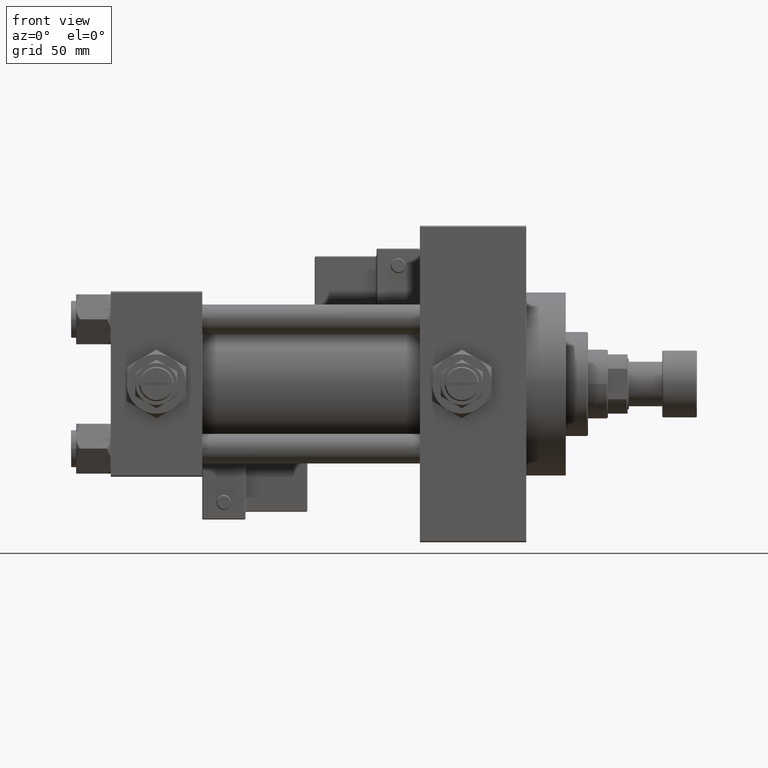
[diagram: clean part render]
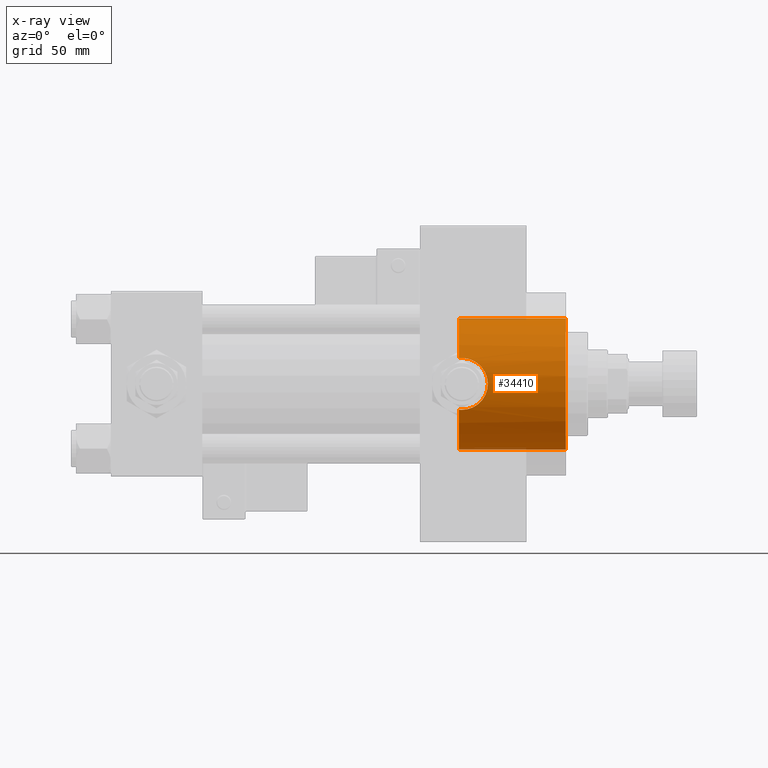
[diagram: x-ray — body ghosted, one internal face saturated and labeled with its STEP entity id]
A machine part, front view, then the same camera in x-ray: the body is ghosted and one INTERNAL B-rep face — a face not visible from any outside direction — is saturated and labeled: STEP entity #34410.
In plain terms, the highlighted cylindrical surface (partial cylindrical patch) has radius 26.5 mm, axis along (1, 0, 0).
Its self-contained STEP definition (entity closure, byte-faithful):
#454 = DIRECTION ( 'NONE',  ( 0.000000000000000000, 0.000000000000000000, -1.000000000000000000 ) ) ;
#645 = FACE_OUTER_BOUND ( 'NONE', #48288, .T. ) ;
#722 = EDGE_CURVE ( 'NONE', #43915, #22516, #12588, .T. ) ;
#1644 = CARTESIAN_POINT ( 'NONE',  ( 140.7400000000000091, -24.37226292324946186, 10.40398000767012654 ) ) ;
#2136 = CARTESIAN_POINT ( 'NONE',  ( 151.0679913760332624, -25.97354752128885025, 5.264851845784581208 ) ) ;
#2283 = CARTESIAN_POINT ( 'NONE',  ( 140.7400000000000091, 0.000000000000000000, -26.50000000000000355 ) ) ;
#2354 = AXIS2_PLACEMENT_3D ( 'NONE', #36370, #44497, #8528 ) ;
#2396 = CARTESIAN_POINT ( 'NONE',  ( 150.3132647636414845, -25.71940794313461254, -6.390292897823897533 ) ) ;
#2816 = EDGE_CURVE ( 'NONE', #8827, #43915, #11239, .T. ) ;
#2907 = CARTESIAN_POINT ( 'NONE',  ( 147.2635990777562256, -24.90054338428140568, -9.068796382691630242 ) ) ;
#3159 = CARTESIAN_POINT ( 'NONE',  ( 152.3421836049516855, -26.44572692659851754, -1.728475508984261610 ) ) ;
#3166 = EDGE_CURVE ( 'NONE', #22595, #22516, #24873, .T. ) ;
#3855 = CIRCLE ( 'NONE', #16415, 26.50000000000000355 ) ;
#5739 = B_SPLINE_CURVE_WITH_KNOTS ( 'NONE', 3,
 ( #48594, #33092, #8924, #20756 ),
 .UNSPECIFIED., .F., .F.,
 ( 4, 4 ),
 ( 0.000000000000000000, 0.001255586767787714641 ),
 .UNSPECIFIED. ) ;
#6324 = CARTESIAN_POINT ( 'NONE',  ( 151.8022638174866472, -26.23907308479209988, 3.723318718764343949 ) ) ;
#6841 = CARTESIAN_POINT ( 'NONE',  ( 147.2636119660473923, -24.89625137302611080, 9.087734872939162045 ) ) ;
#6876 = CARTESIAN_POINT ( 'NONE',  ( 140.7400000000000091, -24.37226292324946542, -10.40398000767012299 ) ) ;
#7094 = CARTESIAN_POINT ( 'NONE',  ( 152.2075249541715039, -26.39335609204158573, 2.399236127628234794 ) ) ;
#7697 = ORIENTED_EDGE ( 'NONE', *, *, #2816, .T. ) ;
#7863 = CARTESIAN_POINT ( 'NONE',  ( 140.7400000000000091, -24.37226292324946186, 10.40398000767012654 ) ) ;
#8528 = DIRECTION ( 'NONE',  ( 0.000000000000000000, 0.000000000000000000, -1.000000000000000000 ) ) ;
#8827 = VERTEX_POINT ( 'NONE', #42511 ) ;
#8924 = CARTESIAN_POINT ( 'NONE',  ( 141.5811236364006049, -24.33967132070604933, -10.47999999999998444 ) ) ;
#10280 = CARTESIAN_POINT ( 'NONE',  ( 151.0816778311289568, -25.97633853132261450, -5.273786452924785983 ) ) ;
#10532 = CARTESIAN_POINT ( 'NONE',  ( 142.0000000000000284, -24.33967132070604933, 10.47999999999998799 ) ) ;
#11047 = CARTESIAN_POINT ( 'NONE',  ( 151.5385175848663266, -26.14168889184969657, 4.354785931857517056 ) ) ;
#11239 = B_SPLINE_CURVE_WITH_KNOTS ( 'NONE', 3,
 ( #33142, #22878, #31018, #27084, #26824, #38879, #34944, #2907, #26565, #26310, #42818, #18933, #43071, #2396, #47020, #10280, #42302, #34176, #30251, #3159, #50967, #14993, #30511, #30762, #46508, #7094, #46250, #19189, #6324, #11047, #23127, #2136, #14232, #14485, #39131, #18680, #18163, #50715, #22363, #6841, #38366, #50205, #38626, #18426, #34433, #14735, #50460, #10532 ),
 .UNSPECIFIED., .F., .F.,
 ( 4, 2, 2, 2, 2, 2, 2, 2, 2, 2, 2, 2, 2, 2, 2, 2, 2, 2, 2, 2, 2, 2, 2, 4 ),
 ( 0.001255586767787714641, 0.003325356817179755085, 0.005395126866571796180, 0.006430011891267852289, 0.007464896915963908398, 0.009534666965355952095, 0.01056955199005197438, 0.01160443701474799492, 0.01367420706413999265, 0.01574397711353198864, 0.01677886213822798664, 0.01781374716292398463, 0.01988351721231598410, 0.02091840223701198556, 0.02195328726170798356, 0.02298817228640397808, 0.02402305731109997608, 0.02609282736049197207, 0.02712771238518797007, 0.02816259740988396806, 0.03023236745927596406, 0.03126725248397199675, 0.03230213750866803291, 0.03437190755806009829 ),
 .UNSPECIFIED. ) ;
#11287 = CARTESIAN_POINT ( 'NONE',  ( 141.1580741051582493, -24.35064928096444703, 10.45461191700780645 ) ) ;
#11904 = AXIS2_PLACEMENT_3D ( 'NONE', #12574, #48809, #35947 ) ;
#11956 = CARTESIAN_POINT ( 'NONE',  ( 140.7400000000000091, 0.000000000000000000, 0.000000000000000000 ) ) ;
#12516 = CARTESIAN_POINT ( 'NONE',  ( 184.0000000000000000, 0.000000000000000000, -26.50000000000000355 ) ) ;
#12574 = CARTESIAN_POINT ( 'NONE',  ( 184.0000000000000000, 0.000000000000000000, 0.000000000000000000 ) ) ;
#12588 = B_SPLINE_CURVE_WITH_KNOTS ( 'NONE', 3,
 ( #34222, #51459, #11287, #7863 ),
 .UNSPECIFIED., .F., .F.,
 ( 4, 4 ),
 ( 0.03437190755806009829, 0.03561776921873222035 ),
 .UNSPECIFIED. ) ;
#14232 = CARTESIAN_POINT ( 'NONE',  ( 150.8904987776702171, -25.91192981801192730, 5.559420023815748735 ) ) ;
#14396 = ORIENTED_EDGE ( 'NONE', *, *, #29983, .T. ) ;
#14485 = CARTESIAN_POINT ( 'NONE',  ( 150.3165002292777501, -25.71874665637611912, 6.413821170274206729 ) ) ;
#14735 = CARTESIAN_POINT ( 'NONE',  ( 143.3839948142214951, -24.36973996242157980, 10.41091756284551728 ) ) ;
#14993 = CARTESIAN_POINT ( 'NONE',  ( 152.4626037639855838, -26.49310609510638770, -0.6963515910539429532 ) ) ;
#15889 = LINE ( 'NONE', #20095, #40735 ) ;
#16406 = CYLINDRICAL_SURFACE ( 'NONE', #2354, 26.50000000000000355 ) ;
#16415 = AXIS2_PLACEMENT_3D ( 'NONE', #20422, #36433, #454 ) ;
#18163 = CARTESIAN_POINT ( 'NONE',  ( 148.9147507852791819, -25.30155050139244111, 7.882476147205575323 ) ) ;
#18426 = CARTESIAN_POINT ( 'NONE',  ( 144.7286532048194374, -24.48994387988090438, 10.12445329003760008 ) ) ;
#18680 = CARTESIAN_POINT ( 'NONE',  ( 149.1663633815065850, -25.37171319999175623, 7.654298772871978684 ) ) ;
#18933 = CARTESIAN_POINT ( 'NONE',  ( 149.6501220615577097, -25.51256335955728005, -7.170912732211439433 ) ) ;
#19189 = CARTESIAN_POINT ( 'NONE',  ( 151.9191483855533988, -26.28308039691835774, 3.400110870430087306 ) ) ;
#19316 = DIRECTION ( 'NONE',  ( 1.000000000000000000, 0.000000000000000000, 0.000000000000000000 ) ) ;
#20095 = CARTESIAN_POINT ( 'NONE',  ( 140.7400000000000091, 3.245314017740486554E-15, 26.50000000000000355 ) ) ;
#20422 = CARTESIAN_POINT ( 'NONE',  ( 140.7400000000000091, 0.000000000000000000, 0.000000000000000000 ) ) ;
#20756 = CARTESIAN_POINT ( 'NONE',  ( 142.0000000000000284, -24.33967132070604933, -10.47999999999998444 ) ) ;
#21232 = CARTESIAN_POINT ( 'NONE',  ( 184.0000000000000000, 3.245314017740486554E-15, 26.50000000000000355 ) ) ;
#22218 = CARTESIAN_POINT ( 'NONE',  ( 142.0000000000000284, -24.33967132070604933, 10.47999999999998799 ) ) ;
#22363 = CARTESIAN_POINT ( 'NONE',  ( 148.1110651716822701, -25.09360970262139645, 8.520611273842991551 ) ) ;
#22516 = VERTEX_POINT ( 'NONE', #1644 ) ;
#22595 = VERTEX_POINT ( 'NONE', #45621 ) ;
#22878 = CARTESIAN_POINT ( 'NONE',  ( 142.6904960883778131, -24.33967132070604578, -10.47999999999998622 ) ) ;
#23127 = CARTESIAN_POINT ( 'NONE',  ( 151.3916535229813576, -26.08830885934474253, 4.663043711798783519 ) ) ;
#23693 = ORIENTED_EDGE ( 'NONE', *, *, #27410, .F. ) ;
#24873 = CIRCLE ( 'NONE', #42471, 26.50000000000000355 ) ;
#26310 = CARTESIAN_POINT ( 'NONE',  ( 148.4049404352971067, -25.16229795609818609, -8.322848467437516717 ) ) ;
#26565 = CARTESIAN_POINT ( 'NONE',  ( 147.5577538920436496, -24.96463143003449758, -8.891425016462831010 ) ) ;
#26738 = VECTOR ( 'NONE', #50350, 1000.000000000000000 ) ;
#26824 = CARTESIAN_POINT ( 'NONE',  ( 145.4024368383432204, -24.56844862672226881, -9.935854460437951730 ) ) ;
#26840 = EDGE_CURVE ( 'NONE', #22595, #50499, #15889, .T. ) ;
#27084 = CARTESIAN_POINT ( 'NONE',  ( 144.7461877943154036, -24.48462605612511567, -10.13781324604277145 ) ) ;
#27410 = EDGE_CURVE ( 'NONE', #49981, #43659, #3855, .T. ) ;
#28036 = CARTESIAN_POINT ( 'NONE',  ( 140.7400000000000091, 0.000000000000000000, -26.50000000000000355 ) ) ;
#29845 = ORIENTED_EDGE ( 'NONE', *, *, #3166, .F. ) ;
#29983 = EDGE_CURVE ( 'NONE', #49981, #8827, #5739, .T. ) ;
#30251 = CARTESIAN_POINT ( 'NONE',  ( 152.1391112229687792, -26.36675217432884466, -2.738755341944245636 ) ) ;
#30511 = CARTESIAN_POINT ( 'NONE',  ( 152.4800680225664280, -26.50002690099940494, -0.3451042088078350445 ) ) ;
#30762 = CARTESIAN_POINT ( 'NONE',  ( 152.4798633477533940, -26.49994595790487750, 0.6963870350870441372 ) ) ;
#31018 = CARTESIAN_POINT ( 'NONE',  ( 143.3786097457406470, -24.36915941385105100, -10.41231194222668321 ) ) ;
#31924 = DIRECTION ( 'NONE',  ( 1.000000000000000000, -0.000000000000000000, -0.000000000000000000 ) ) ;
#33092 = CARTESIAN_POINT ( 'NONE',  ( 141.1611364518797984, -24.35049096341793273, -10.45498279016080012 ) ) ;
#33142 = CARTESIAN_POINT ( 'NONE',  ( 142.0000000000000284, -24.33967132070604933, -10.47999999999998444 ) ) ;
#34176 = CARTESIAN_POINT ( 'NONE',  ( 151.9389570606565769, -26.28956209411558476, -3.395175965175881938 ) ) ;
#34222 = CARTESIAN_POINT ( 'NONE',  ( 142.0000000000000284, -24.33967132070604933, 10.47999999999998799 ) ) ;
#34410 = ADVANCED_FACE ( 'NONE', ( #645 ), #16406, .F. ) ;
#34433 = CARTESIAN_POINT ( 'NONE',  ( 144.3947302122628287, -24.45488967133339386, 10.20851256290625741 ) ) ;
#34944 = CARTESIAN_POINT ( 'NONE',  ( 146.6580558779860723, -24.77960996754317691, -9.394203453174519325 ) ) ;
#35328 = DIRECTION ( 'NONE',  ( 0.000000000000000000, 0.000000000000000000, -1.000000000000000000 ) ) ;
#35365 = CIRCLE ( 'NONE', #11904, 26.50000000000000355 ) ;
#35947 = DIRECTION ( 'NONE',  ( 0.000000000000000000, 0.000000000000000000, -1.000000000000000000 ) ) ;
#36231 = EDGE_CURVE ( 'NONE', #43659, #50768, #51117, .T. ) ;
#36370 = CARTESIAN_POINT ( 'NONE',  ( 140.7400000000000091, 0.000000000000000000, 0.000000000000000000 ) ) ;
#36433 = DIRECTION ( 'NONE',  ( 1.000000000000000000, 0.000000000000000000, 0.000000000000000000 ) ) ;
#38366 = CARTESIAN_POINT ( 'NONE',  ( 146.6659000583122463, -24.77500862834707362, 9.408993987884874954 ) ) ;
#38626 = CARTESIAN_POINT ( 'NONE',  ( 145.3904700717597223, -24.57248644795726022, 9.922439993611760656 ) ) ;
#38879 = CARTESIAN_POINT ( 'NONE',  ( 146.3489237122697659, -24.72318467201153425, -9.541179571695405315 ) ) ;
#39131 = CARTESIAN_POINT ( 'NONE',  ( 149.8850942087586304, -25.58093385762821725, 6.936447548980003042 ) ) ;
#40735 = VECTOR ( 'NONE', #31924, 1000.000000000000000 ) ;
#42302 = CARTESIAN_POINT ( 'NONE',  ( 151.4057128516256228, -26.09263577897064224, -4.673612418766440513 ) ) ;
#42471 = AXIS2_PLACEMENT_3D ( 'NONE', #11956, #19316, #35328 ) ;
#42511 = CARTESIAN_POINT ( 'NONE',  ( 142.0000000000000284, -24.33967132070604933, -10.47999999999998444 ) ) ;
#42818 = CARTESIAN_POINT ( 'NONE',  ( 148.9276451403627561, -25.30216499957183984, -7.893159106980509598 ) ) ;
#43071 = CARTESIAN_POINT ( 'NONE',  ( 149.8811664359166400, -25.58300917221410486, -6.916171625962123315 ) ) ;
#43451 = ORIENTED_EDGE ( 'NONE', *, *, #722, .T. ) ;
#43657 = ORIENTED_EDGE ( 'NONE', *, *, #26840, .T. ) ;
#43659 = VERTEX_POINT ( 'NONE', #28036 ) ;
#43915 = VERTEX_POINT ( 'NONE', #22218 ) ;
#44497 = DIRECTION ( 'NONE',  ( 1.000000000000000000, -0.000000000000000000, -0.000000000000000000 ) ) ;
#45172 = ORIENTED_EDGE ( 'NONE', *, *, #46847, .T. ) ;
#45621 = CARTESIAN_POINT ( 'NONE',  ( 140.7400000000000091, 3.245314017740486554E-15, 26.50000000000000355 ) ) ;
#46250 = CARTESIAN_POINT ( 'NONE',  ( 152.1219222710722647, -26.36027543327035261, 2.738055544399092600 ) ) ;
#46508 = CARTESIAN_POINT ( 'NONE',  ( 152.4114040688937735, -26.47265107862980926, 1.382412405478187001 ) ) ;
#46847 = EDGE_CURVE ( 'NONE', #50499, #50768, #35365, .T. ) ;
#47020 = CARTESIAN_POINT ( 'NONE',  ( 150.5155153844950178, -25.78569419426081311, -6.118106053452856408 ) ) ;
#47984 = ORIENTED_EDGE ( 'NONE', *, *, #36231, .F. ) ;
#48288 = EDGE_LOOP ( 'NONE', ( #29845, #43657, #45172, #47984, #23693, #14396, #7697, #43451 ) ) ;
#48594 = CARTESIAN_POINT ( 'NONE',  ( 140.7400000000000091, -24.37226292324946542, -10.40398000767012299 ) ) ;
#48809 = DIRECTION ( 'NONE',  ( 1.000000000000000000, 0.000000000000000000, 0.000000000000000000 ) ) ;
#49981 = VERTEX_POINT ( 'NONE', #6876 ) ;
#50205 = CARTESIAN_POINT ( 'NONE',  ( 145.7173844672076655, -24.61993612039166024, 9.804529592362708712 ) ) ;
#50350 = DIRECTION ( 'NONE',  ( 1.000000000000000000, -0.000000000000000000, -0.000000000000000000 ) ) ;
#50460 = CARTESIAN_POINT ( 'NONE',  ( 142.6982936874238703, -24.33967132070605288, 10.47999999999998799 ) ) ;
#50499 = VERTEX_POINT ( 'NONE', #21232 ) ;
#50715 = CARTESIAN_POINT ( 'NONE',  ( 148.3864792908362631, -25.16230905708523480, 8.316254619809530624 ) ) ;
#50768 = VERTEX_POINT ( 'NONE', #12516 ) ;
#50967 = CARTESIAN_POINT ( 'NONE',  ( 152.3935590552674171, -26.46591511510092332, -1.387412420731378715 ) ) ;
#51117 = LINE ( 'NONE', #2283, #26738 ) ;
#51459 = CARTESIAN_POINT ( 'NONE',  ( 141.5796744023297435, -24.33967132070604933, 10.47999999999998799 ) ) ;